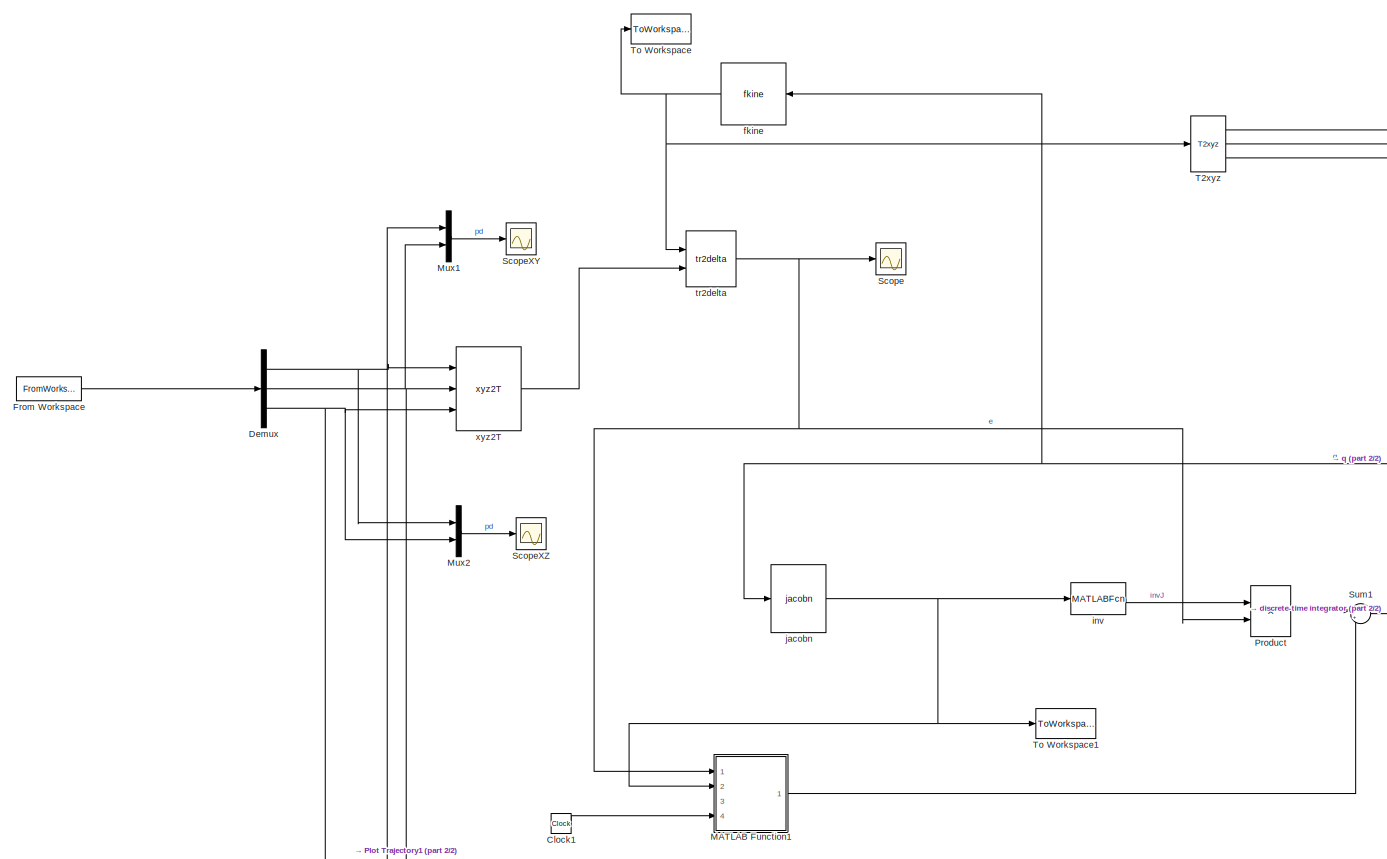
[diagram: root canvas - part 1/2, left side, full height]
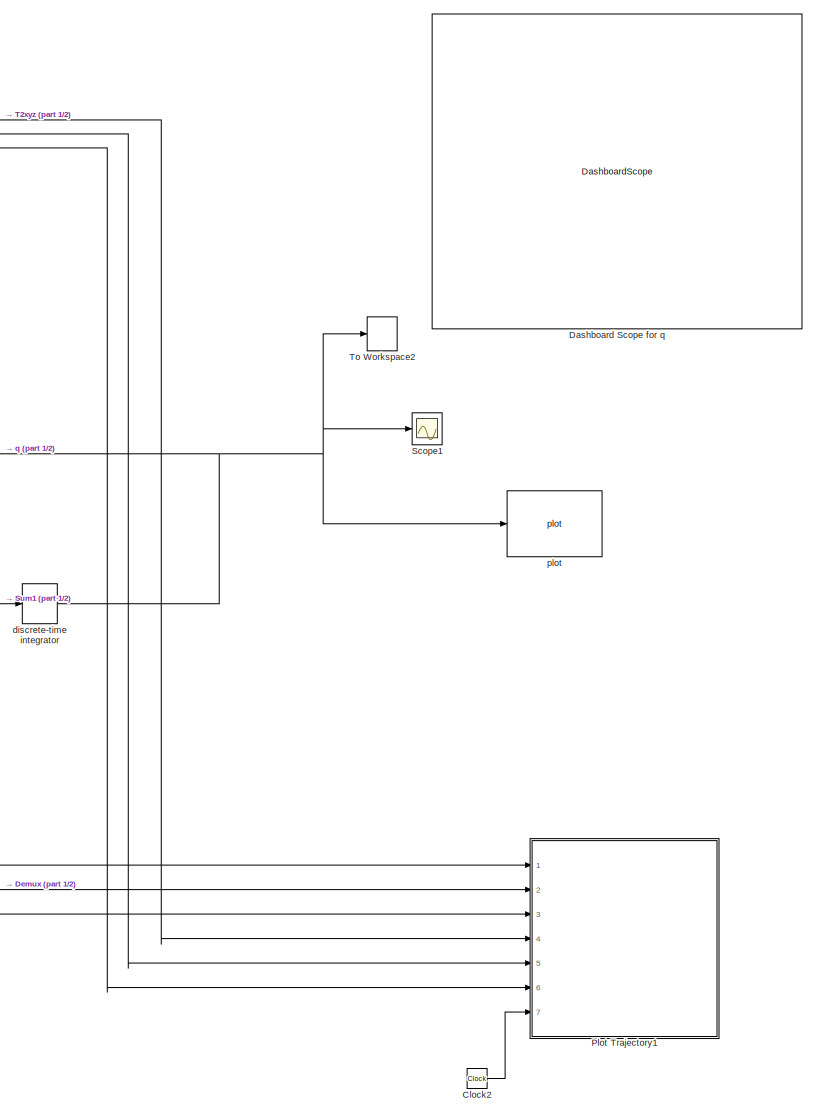
[diagram: root canvas - part 2/2, right side, full height]
MODEL slx_0aefdbd3b13c
KIND model
CONFIG AbsTol = auto
CONFIG EnableMultiTasking = off
CONFIG FixedStep = auto
CONFIG MaxStep = auto
CONFIG MinStep = auto
CONFIG RelTol = 1e-3
CONFIG SampleTimeConstraint = Unconstrained
CONFIG SolverName = VariableStepAuto
CONFIG StartTime = 0.0
CONFIG StopTime = 30
BLOCK [Clock] Clock1
  Commented = on
  Decimation = 1
BLOCK [Clock] Clock2
  Decimation = 1
BLOCK [DashboardScope] Dashboard Scope for q
BLOCK [Demux] Demux
  Outputs = 3
  Ports = [1, 3]
BLOCK [FromWorkspace] From Workspace
  SampleTime = -1
  VariableName = data1
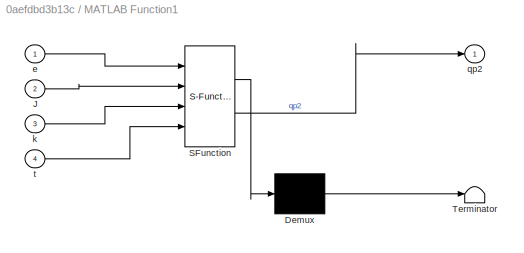
BLOCK [SubSystem] MATLAB Function1
  Commented = on
  ErrorFcn = Stateflow.Translate.translate
  PermitHierarchicalResolution = ExplicitOnly
  Ports = [4, 1]
  Priority = 6
  RequestExecContextInheritance = off
  SFBlockType = MATLAB Function
  TreatAsAtomicUnit = on
BLOCK [Demux] MATLAB Function1/ Demux 
  Outputs = 1
  Ports = [1, 1]
BLOCK [S-Function] MATLAB Function1/ SFunction 
  EnableBusSupport = on
  FunctionName = sf_sfun
  PortCounts = [4 2]
  Ports = [4, 2]
  SFcnIsStateOwnerBlock = off
  SFunctionDeploymentMode = off
  Tag = Stateflow S-Function 9
BLOCK [Terminator] MATLAB Function1/ Terminator 
BLOCK [Inport] MATLAB Function1/J
  Port = 2
BLOCK [Inport] MATLAB Function1/e
BLOCK [Inport] MATLAB Function1/k
  Port = 3
BLOCK [Outport] MATLAB Function1/qp2
BLOCK [Inport] MATLAB Function1/t
  Port = 4
BLOCK [Mux] Mux1
  DisplayOption = bar
  Inputs = 2
  Ports = [2, 1]
BLOCK [Mux] Mux2
  DisplayOption = bar
  Inputs = 2
  Ports = [2, 1]
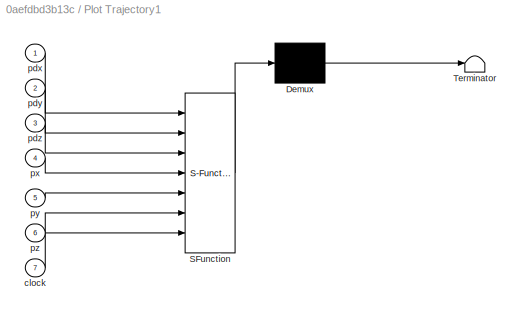
BLOCK [SubSystem] Plot Trajectory1
  ErrorFcn = Stateflow.Translate.translate
  PermitHierarchicalResolution = ExplicitOnly
  Ports = [7]
  RequestExecContextInheritance = off
  SFBlockType = MATLAB Function
  SystemSampleTime = 0.3
  TreatAsAtomicUnit = on
BLOCK [Demux] Plot Trajectory1/ Demux 
  Outputs = 1
  Ports = [1, 1]
BLOCK [S-Function] Plot Trajectory1/ SFunction 
  EnableBusSupport = on
  FunctionName = sf_sfun
  PortCounts = [7 1]
  Ports = [7, 1]
  SFcnIsStateOwnerBlock = off
  SFunctionDeploymentMode = off
  Tag = Stateflow S-Function 1
BLOCK [Terminator] Plot Trajectory1/ Terminator 
BLOCK [Inport] Plot Trajectory1/clock
  Port = 7
BLOCK [Inport] Plot Trajectory1/pdx
BLOCK [Inport] Plot Trajectory1/pdy
  Port = 2
BLOCK [Inport] Plot Trajectory1/pdz
  Port = 3
BLOCK [Inport] Plot Trajectory1/px
  Port = 4
BLOCK [Inport] Plot Trajectory1/py
  Port = 5
BLOCK [Inport] Plot Trajectory1/pz
  Port = 6
BLOCK [Product] Product
  InputSameDT = on
  Multiplication = Matrix(*)
  OutDataTypeStr = Inherit: Same as first input
  Ports = [2, 1]
  RndMeth = Zero
  SaturateOnIntegerOverflow = on
BLOCK [Scope] Scope
  Floating = off
  NumInputPorts = 1
  Ports = [1]
  ScopeSpecificationString = Simulink.scopes.TimeScopeBlockCfg('CurrentConfiguration', extmgr.ConfigurationSet(extmgr.Configuration('Core','General UI',true),extmgr.Configuration('Core','Source UI',true),extmgr.Configuration('Sources','WiredSimulink',true),extmgr.Configuration('Visuals','Time Domain',true,'SerializedDisplays',{struct('MinYLimReal','-0.46139','MaxYLimReal','1.16238','YLabelReal','','MinYLimMag','0.00000','MaxY...<+1434ch>
BLOCK [Scope] Scope1
  Floating = off
  NumInputPorts = 1
  Ports = [1]
  ScopeSpecificationString = Simulink.scopes.TimeScopeBlockCfg('CurrentConfiguration', extmgr.ConfigurationSet(extmgr.Configuration('Core','General UI',true),extmgr.Configuration('Core','Source UI',true),extmgr.Configuration('Sources','WiredSimulink',true,'DataLoggingVariableName','ScopeData1'),extmgr.Configuration('Visuals','Time Domain',true,'SerializedDisplays',{struct('MinYLimReal','-1.15203','MaxYLimReal','3.68983','YLab...<+1502ch>
BLOCK [Scope] ScopeXY
  Floating = off
  NumInputPorts = 1
  Ports = [1]
  ScopeSpecificationString = Simulink.scopes.TimeScopeBlockCfg('CurrentConfiguration', extmgr.ConfigurationSet(extmgr.Configuration('Core','General UI',true),extmgr.Configuration('Core','Source UI',true),extmgr.Configuration('Sources','WiredSimulink',true,'DataLoggingVariableName','ScopeData2'),extmgr.Configuration('Visuals','Time Domain',true,'SerializedDisplays',{struct('MinYLimReal','-0.34364','MaxYLimReal','0.37414','YLab...<+1498ch>
BLOCK [Scope] ScopeXZ
  Floating = off
  NumInputPorts = 1
  Ports = [1]
  ScopeSpecificationString = Simulink.scopes.TimeScopeBlockCfg('CurrentConfiguration', extmgr.ConfigurationSet(extmgr.Configuration('Core','General UI',true),extmgr.Configuration('Core','Source UI',true),extmgr.Configuration('Sources','WiredSimulink',true,'DataLoggingVariableName','ScopeData1'),extmgr.Configuration('Visuals','Time Domain',true,'SerializedDisplays',{struct('MinYLimReal','-0.36864','MaxYLimReal','0.59914','YLab...<+1498ch>
BLOCK [Sum] Sum1
  Inputs = |++
  Ports = [2, 1]
BLOCK [Reference] T2xyz  REF=roblocks/Toolbox/T2xyz  (lib defined in mdl_2a292b13c81b, mdl_69400f8cfe22, +12 more)
  Ports = [1, 3]
  SourceBlock = roblocks/Toolbox/T2xyz
BLOCK [ToWorkspace] To Workspace
  MaxDataPoints = inf
  NameLocation = top
  Ports = [1]
  SampleTime = -1
  VariableName = T
BLOCK [ToWorkspace] To Workspace1
  MaxDataPoints = inf
  NameLocation = top
  Ports = [1]
  SampleTime = -1
  VariableName = J
BLOCK [ToWorkspace] To Workspace2
  MaxDataPoints = inf
  NameLocation = top
  Ports = [1]
  SampleTime = -1
  VariableName = q
BLOCK [DiscreteIntegrator] discrete-time integrator
  ICPrevOutput = DiscIntNeverNeededParam
  ICPrevScaledInput = DiscIntNeverNeededParam
  InitialCondition = qn
  Ports = [1, 1]
  SampleTime = 0.05
  gainval = 5
BLOCK [Reference] fkine  REF=roblocks/Arm/fkine  (lib defined in mdl_2a292b13c81b, mdl_69400f8cfe22, +12 more)
  Ports = [1, 1]
  SourceBlock = roblocks/Arm/fkine
BLOCK [MATLABFcn] inv
  MATLABFcn = inv
  Output1D = off
  Ports = [1, 1]
BLOCK [Reference] jacobn  REF=roblocks/Arm/jacobn  (lib defined in mdl_2a292b13c81b, mdl_69400f8cfe22, +12 more)
  Ports = [1, 1]
  SourceBlock = roblocks/Arm/jacobn
BLOCK [Reference] plot  REF=roblocks/Arm/plot  (lib defined in mdl_2a292b13c81b, mdl_69400f8cfe22, +12 more)
  Ports = [1]
  SourceBlock = roblocks/Arm/plot
BLOCK [Reference] tr2delta  REF=roblocks/Toolbox/tr2delta  (lib defined in mdl_2a292b13c81b, mdl_69400f8cfe22, +12 more)
  Ports = [2, 1]
  SourceBlock = roblocks/Toolbox/tr2delta
BLOCK [Reference] xyz2T  REF=roblocks/Toolbox/xyz2T  (lib defined in mdl_2a292b13c81b, mdl_69400f8cfe22, +12 more)
  Ports = [3, 1]
  SourceBlock = roblocks/Toolbox/xyz2T
LINE Clock1:1 -> MATLAB Function1:4
LINE Clock2:1 -> Plot Trajectory1:7
NET Demux:1 -> Mux1:1, Mux2:1, Plot Trajectory1:1, xyz2T:1
NET Demux:2 -> Mux1:2, Plot Trajectory1:2, xyz2T:2
NET Demux:3 -> Mux2:2, Plot Trajectory1:3, xyz2T:3
LINE From Workspace:1 -> Demux:1
LINE MATLAB Function1:1 -> Sum1:2
LINE Mux1:1 -> ScopeXY:1
LINE Mux2:1 -> ScopeXZ:1
LINE Product:1 -> Sum1:1
LINE Sum1:1 -> discrete-time integrator:1
LINE T2xyz:1 -> Plot Trajectory1:4
LINE T2xyz:2 -> Plot Trajectory1:5
LINE T2xyz:3 -> Plot Trajectory1:6
NET discrete-time integrator:1 -> Scope1:1, To Workspace2:1, fkine:1, jacobn:1, plot:1
NET fkine:1 -> T2xyz:1, To Workspace:1, tr2delta:1
LINE inv:1 -> Product:1
NET jacobn:1 -> MATLAB Function1:2, To Workspace1:1, inv:1
NET tr2delta:1 -> MATLAB Function1:1, Product:2, Scope:1
LINE xyz2T:1 -> tr2delta:2
note: NET lines group one-source signal fan-out (src -> all destinations, sorted); 1:1 wires keep LINE
CHART Plot Trajectory1 states=1 transitions=1
  STATE_LABEL 'eML_blk_kernel()'
  STATE_LABEL "SCRIPT:\nfunction PlotTraiettoria(pdx,pdy,pdz,px,py,pz, clock)\n\neml.extrinsic('findobj','get','set','figure','clf',...\n              'hold','delete','plot','axis','grid',...\n              'hggroup','quiver','drawnow');\n          \npersistent target;\n% persistent chain;\n% persistent velocity;\n% persistent chain2;\npersistent i;\npersistent k;\n\npersistent obiettivo;\n\n\nn=1;\n\n\nif isempty(target)\n    targe...<+1533ch>"
CHART MATLAB Function1 states=1 transitions=1
  STATE_LABEL 'eML_blk_kernel()'
  STATE_LABEL "SCRIPT:\nfunction qp2 = fcn(e,J,k, t)\n\npersistent f_v\npersistent e_v\npersistent last_k\n\nn=400;\n\nif isempty(last_k)\n    last_k=-1;\nend\n\n\nif isempty(f_v)\n    f_v=zeros(n,3);\nend\n   \nif isempty(e_v)\n    e_v=zeros(n,2);\nend\n\n\nif k~=last_k\n%   \n     %disp(k)\n     last_k=k;\n     \n     if t<500\n        f_v(k,:)=0.6.*f_v(k,:)+(pinv(J).*e_v(k,:)')';\n     else\n        f_v(k,:)=0.95.*f_v(k,:)+(pinv(J).*e_v(k,...<+82ch>"
CHART  states=0 transitions=0
CHART  states=0 transitions=0
